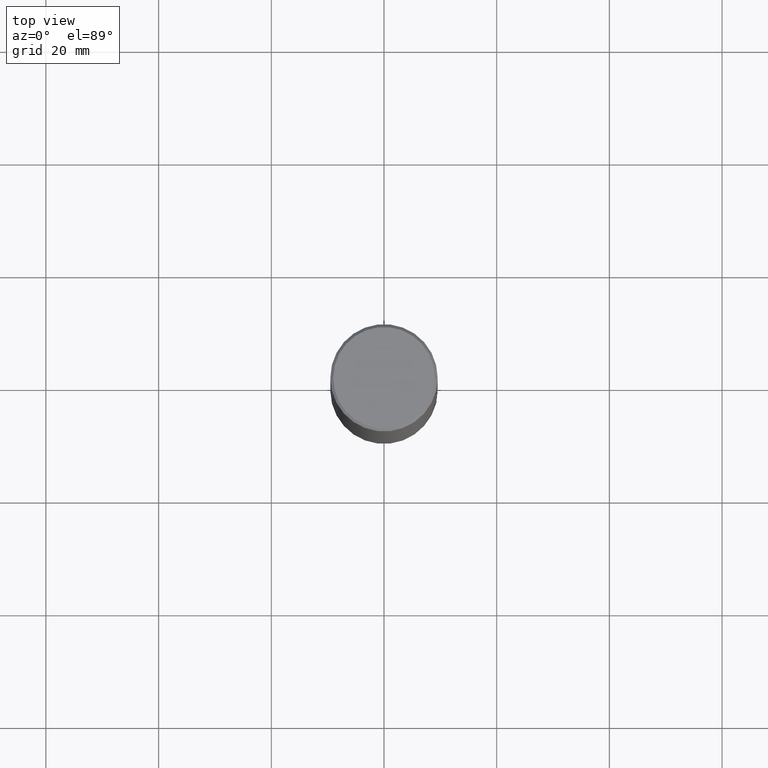
[diagram: clean part render]
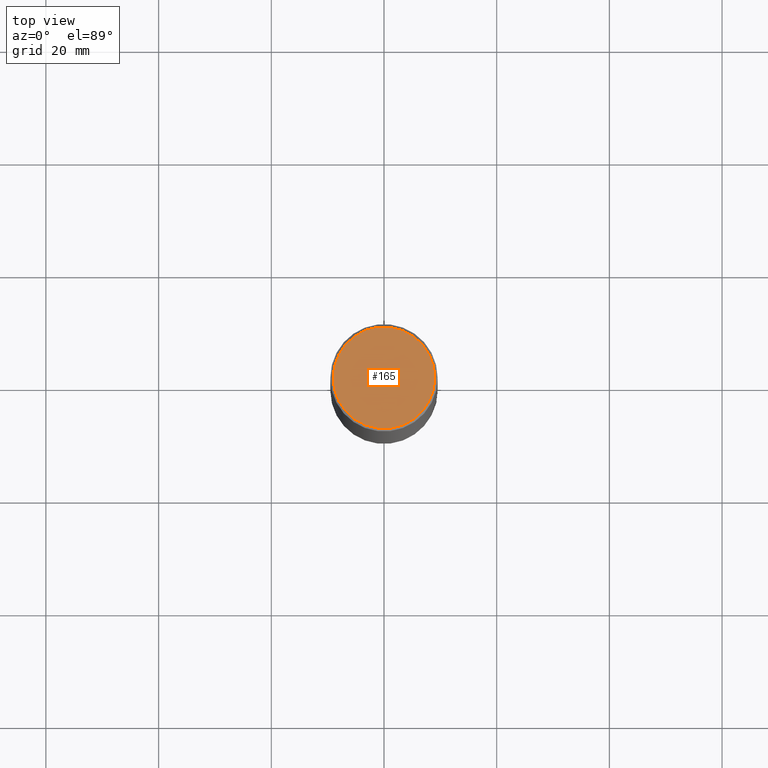
[diagram: same view with one face highlighted and labeled with its STEP entity id]
A machine part, top view. The second image highlights one B-rep face of the part: STEP entity #165.
In plain terms, the highlighted planar face has unit normal (0, -0, -1).
Its self-contained STEP definition (entity closure, byte-faithful):
#25 = CIRCLE ( 'NONE', #150, 0.3549999999999997047 ) ;
#40 = CARTESIAN_POINT ( 'NONE',  ( 2.478951750578622237E-15, 0.3549999999999997047, -1.235207362799215228E-15 ) ) ;
#61 = CARTESIAN_POINT ( 'NONE',  ( -2.087702828670439639E-46, 2.980686340760894400E-32, 8.537024980200822558E-18 ) ) ;
#62 = EDGE_CURVE ( 'NONE', #175, #292, #208, .T. ) ;
#65 = AXIS2_PLACEMENT_3D ( 'NONE', #40, #159, #348 ) ;
#93 = DIRECTION ( 'NONE',  ( -2.445468806185136597E-29, 3.491481338843145583E-15, 1.000000000000000000 ) ) ;
#111 = AXIS2_PLACEMENT_3D ( 'NONE', #61, #182, #265 ) ;
#148 = ORIENTED_EDGE ( 'NONE', *, *, #232, .T. ) ;
#150 = AXIS2_PLACEMENT_3D ( 'NONE', #156, #93, #328 ) ;
#156 = CARTESIAN_POINT ( 'NONE',  ( -2.087702828670439639E-46, 2.980686340760894400E-32, 8.537024980200822558E-18 ) ) ;
#159 = DIRECTION ( 'NONE',  ( 2.438088387897960049E-29, -3.491481338843145188E-15, -1.000000000000000000 ) ) ;
#162 = FACE_OUTER_BOUND ( 'NONE', #250, .T. ) ;
#165 = ADVANCED_FACE ( 'NONE', ( #162 ), #351, .F. ) ;
#175 = VERTEX_POINT ( 'NONE', #321 ) ;
#182 = DIRECTION ( 'NONE',  ( -2.445468806185136597E-29, 3.491481338843145583E-15, 1.000000000000000000 ) ) ;
#199 = CARTESIAN_POINT ( 'NONE',  ( 0.3549999999999997047, -2.538996582575038287E-15, 8.537024980218368550E-18 ) ) ;
#208 = CIRCLE ( 'NONE', #111, 0.3549999999999997047 ) ;
#232 = EDGE_CURVE ( 'NONE', #292, #175, #25, .T. ) ;
#250 = EDGE_LOOP ( 'NONE', ( #310, #148 ) ) ;
#265 = DIRECTION ( 'NONE',  ( 1.000000000000000000, -6.982962677686265922E-15, 4.876231632511992107E-29 ) ) ;
#292 = VERTEX_POINT ( 'NONE', #199 ) ;
#310 = ORIENTED_EDGE ( 'NONE', *, *, #62, .T. ) ;
#321 = CARTESIAN_POINT ( 'NONE',  ( -0.3549999999999997047, 2.513866563967053097E-15, 8.537024980183364388E-18 ) ) ;
#328 = DIRECTION ( 'NONE',  ( 1.000000000000000000, -6.982962677686265922E-15, 4.876231632511992107E-29 ) ) ;
#348 = DIRECTION ( 'NONE',  ( -1.000000000000000000, 6.982962677686265922E-15, -4.876176775795935793E-29 ) ) ;
#351 = PLANE ( 'NONE',  #65 ) ;